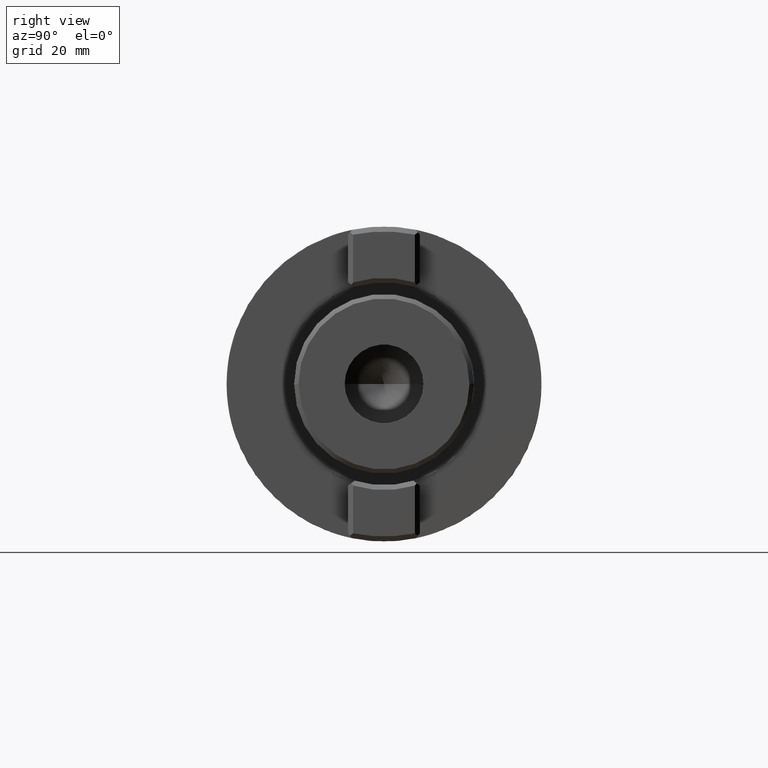
[diagram: clean part render]
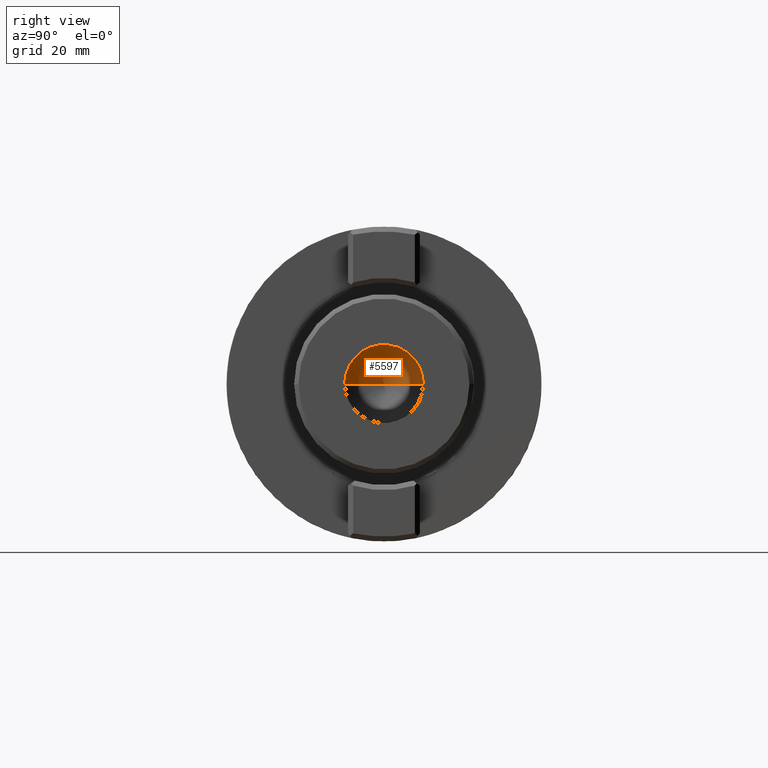
[diagram: same view with one face highlighted and labeled with its STEP entity id]
A machine part, right view. The second image highlights one B-rep face of the part: STEP entity #5597.
In plain terms, the highlighted conical surface has half-angle 59 deg.
Its self-contained STEP definition (entity closure, byte-faithful):
#1788=CARTESIAN_POINT('',(5.2E1,0.E0,0.E0));
#1789=DIRECTION('',(-1.E0,0.E0,0.E0));
#1790=DIRECTION('',(0.E0,-1.E0,0.E0));
#1791=AXIS2_PLACEMENT_3D('',#1788,#1789,#1790);
#1797=DIRECTION('',(5.150380749101E-1,-8.571673007021E-1,0.E0));
#1798=VECTOR('',#1797,1.020804222563E1);
#1799=CARTESIAN_POINT('',(4.674246958351E1,0.E0,0.E0));
#1800=LINE('',#1799,#1798);
#1801=DIRECTION('',(5.150380749101E-1,8.571673007021E-1,0.E0));
#1802=VECTOR('',#1801,1.020804222563E1);
#1803=CARTESIAN_POINT('',(4.674246958351E1,0.E0,0.E0));
#1804=LINE('',#1803,#1802);
#3527=CARTESIAN_POINT('',(4.674246958351E1,0.E0,0.E0));
#3528=CARTESIAN_POINT('',(5.2E1,-8.75E0,0.E0));
#3529=VERTEX_POINT('',#3527);
#3530=VERTEX_POINT('',#3528);
#3531=CARTESIAN_POINT('',(5.2E1,8.75E0,0.E0));
#3532=VERTEX_POINT('',#3531);
#5585=CARTESIAN_POINT('',(4.937123479175E1,0.E0,0.E0));
#5586=DIRECTION('',(1.E0,0.E0,0.E0));
#5587=DIRECTION('',(0.E0,-1.E0,0.E0));
#5588=AXIS2_PLACEMENT_3D('',#5585,#5586,#5587);
#5589=CONICAL_SURFACE('',#5588,4.375E0,5.9E1);
#5591=ORIENTED_EDGE('',*,*,#5590,.T.);
#5592=ORIENTED_EDGE('',*,*,#5579,.T.);
#5594=ORIENTED_EDGE('',*,*,#5593,.F.);
#5595=EDGE_LOOP('',(#5591,#5592,#5594));
#5596=FACE_OUTER_BOUND('',#5595,.F.);
#5597=ADVANCED_FACE('',(#5596),#5589,.F.);
#1792=CIRCLE('',#1791,8.75E0);
#5579=EDGE_CURVE('',#3530,#3532,#1792,.T.);
#5590=EDGE_CURVE('',#3529,#3530,#1800,.T.);
#5593=EDGE_CURVE('',#3529,#3532,#1804,.T.);